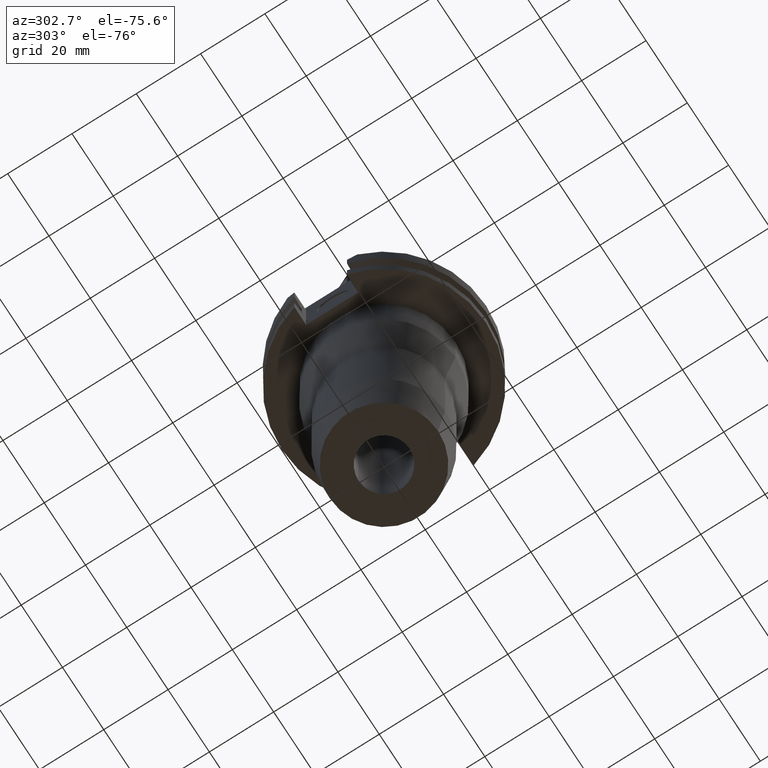
[diagram: clean part render]
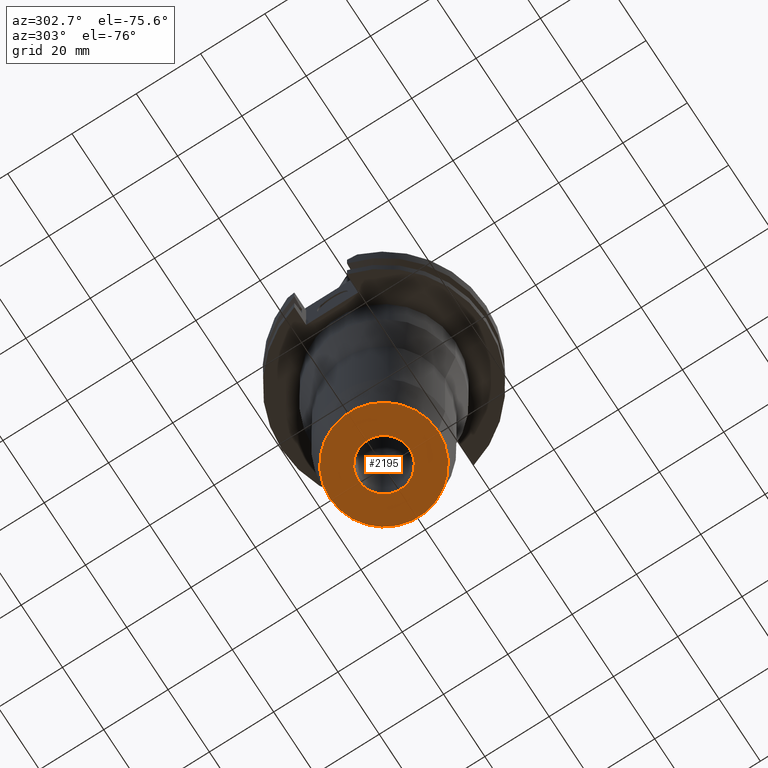
[diagram: same view with one face highlighted and labeled with its STEP entity id]
A machine part, auxiliary view. The second image highlights one B-rep face of the part: STEP entity #2195.
In plain terms, the highlighted planar face has unit normal (0, 0, -1).
Its self-contained STEP definition (entity closure, byte-faithful):
#952=CARTESIAN_POINT('',(0.E0,0.E0,-1.016E2));
#953=DIRECTION('',(0.E0,0.E0,1.E0));
#954=DIRECTION('',(0.E0,-1.E0,0.E0));
#955=AXIS2_PLACEMENT_3D('',#952,#953,#954);
#960=CARTESIAN_POINT('',(0.E0,0.E0,-1.016E2));
#961=DIRECTION('',(0.E0,0.E0,1.E0));
#962=DIRECTION('',(0.E0,1.E0,0.E0));
#963=AXIS2_PLACEMENT_3D('',#960,#961,#962);
#968=CARTESIAN_POINT('',(0.E0,2.164471368983E-14,-1.016E2));
#969=DIRECTION('',(0.E0,0.E0,-1.E0));
#970=DIRECTION('',(0.E0,-1.E0,0.E0));
#971=AXIS2_PLACEMENT_3D('',#968,#969,#970);
#976=CARTESIAN_POINT('',(0.E0,2.164471368983E-14,-1.016E2));
#977=DIRECTION('',(0.E0,0.E0,-1.E0));
#978=DIRECTION('',(0.E0,1.E0,0.E0));
#979=AXIS2_PLACEMENT_3D('',#976,#977,#978);
#1310=CARTESIAN_POINT('',(0.E0,7.9375E0,-1.016E2));
#1311=VERTEX_POINT('',#1310);
#1312=CARTESIAN_POINT('',(0.E0,-7.9375E0,-1.016E2));
#1313=VERTEX_POINT('',#1312);
#1314=CARTESIAN_POINT('',(0.E0,-1.68455E1,-1.016E2));
#1315=CARTESIAN_POINT('',(0.E0,1.68455E1,-1.016E2));
#1316=VERTEX_POINT('',#1314);
#1317=VERTEX_POINT('',#1315);
#2180=CARTESIAN_POINT('',(0.E0,0.E0,-1.016E2));
#2181=DIRECTION('',(0.E0,0.E0,-1.E0));
#2182=DIRECTION('',(0.E0,-1.E0,0.E0));
#2183=AXIS2_PLACEMENT_3D('',#2180,#2181,#2182);
#2184=PLANE('',#2183);
#2185=ORIENTED_EDGE('',*,*,#2159,.T.);
#2186=ORIENTED_EDGE('',*,*,#2175,.T.);
#2187=EDGE_LOOP('',(#2185,#2186));
#2188=FACE_OUTER_BOUND('',#2187,.F.);
#2190=ORIENTED_EDGE('',*,*,#2189,.T.);
#2192=ORIENTED_EDGE('',*,*,#2191,.T.);
#2193=EDGE_LOOP('',(#2190,#2192));
#2194=FACE_BOUND('',#2193,.F.);
#956=CIRCLE('',#955,1.68455E1);
#964=CIRCLE('',#963,1.68455E1);
#972=CIRCLE('',#971,7.9375E0);
#980=CIRCLE('',#979,7.9375E0);
#2159=EDGE_CURVE('',#1316,#1317,#956,.T.);
#2175=EDGE_CURVE('',#1317,#1316,#964,.T.);
#2189=EDGE_CURVE('',#1313,#1311,#972,.T.);
#2191=EDGE_CURVE('',#1311,#1313,#980,.T.);
#2195=ADVANCED_FACE('',(#2188,#2194),#2184,.T.);